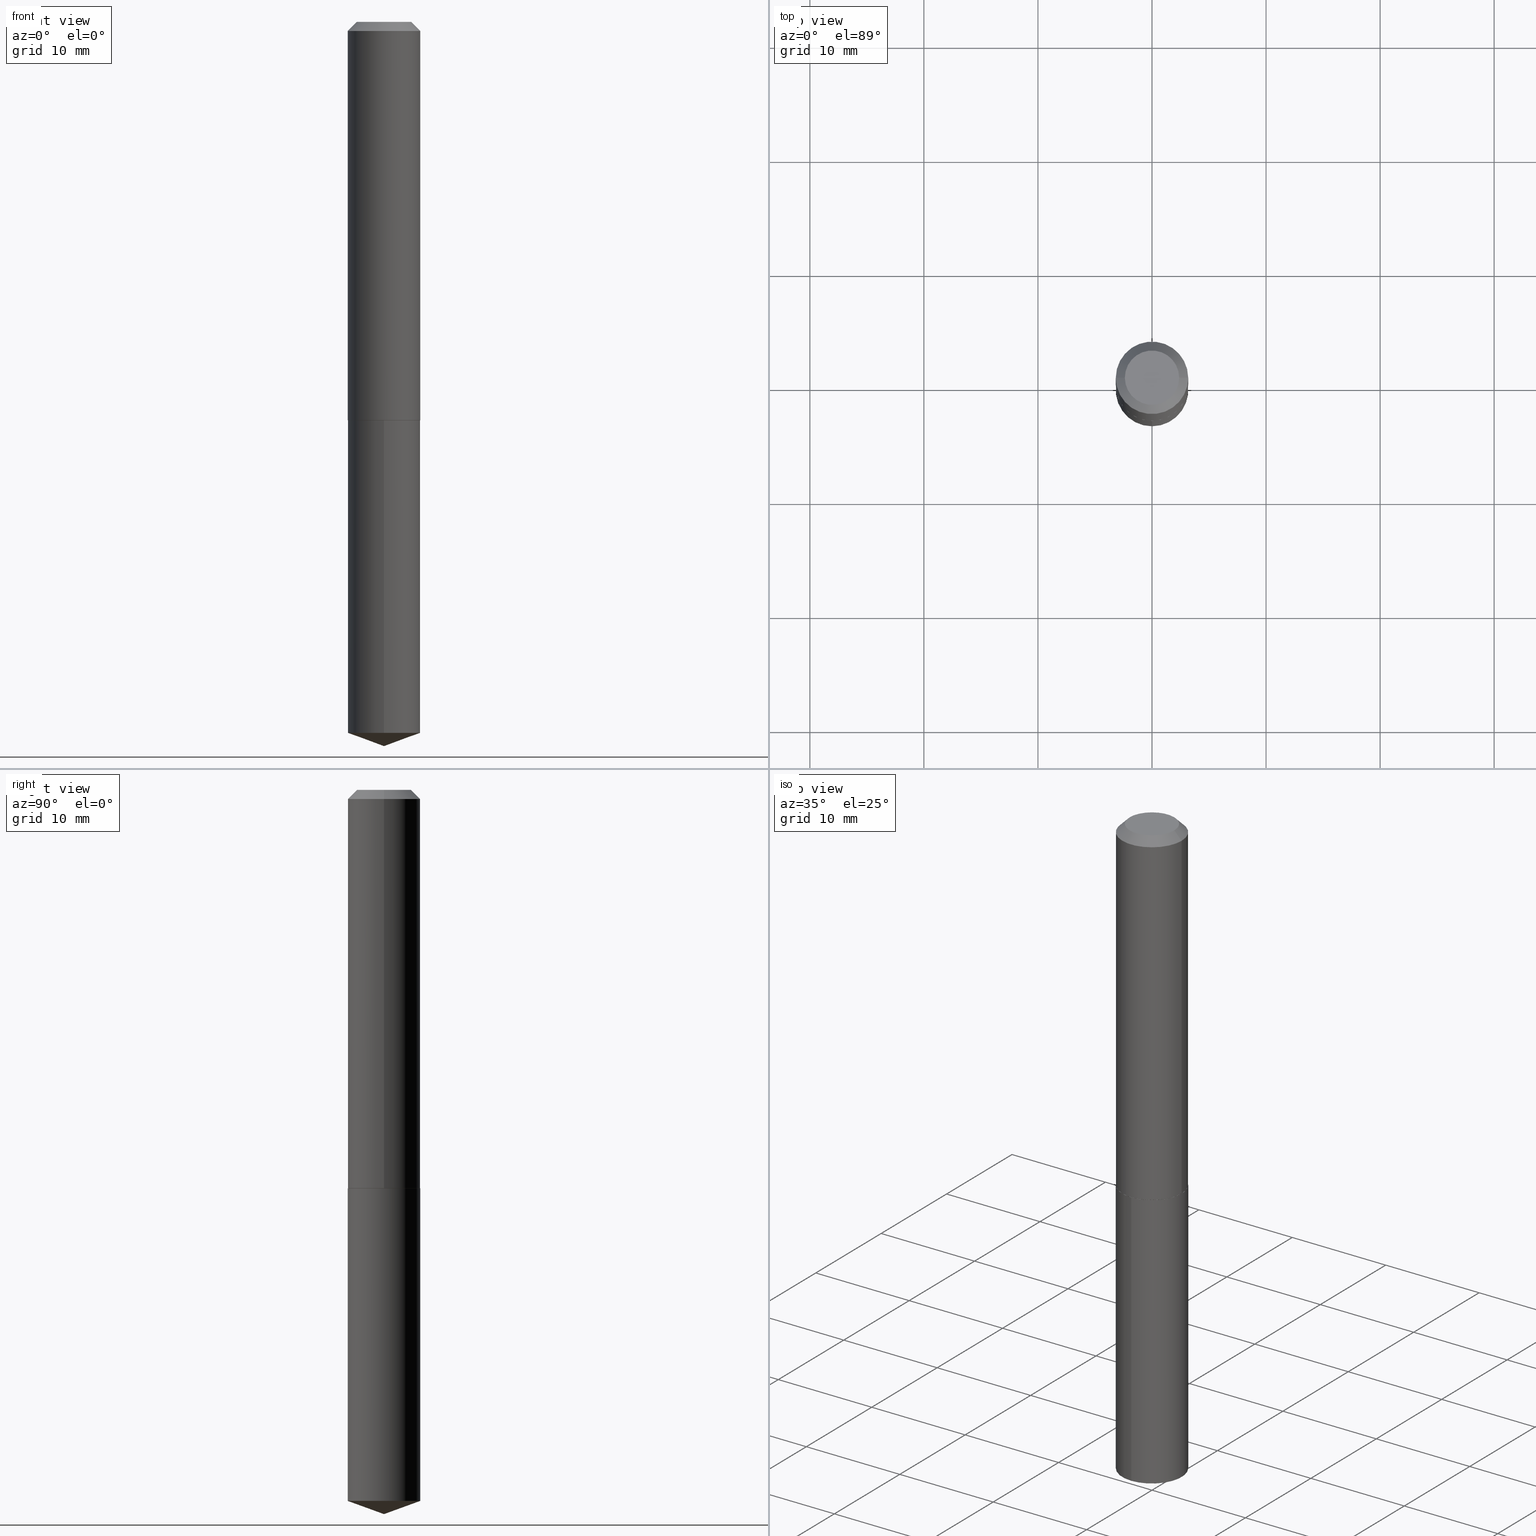
[diagram: canonical four-view strip — front | top / right | iso, engineering-drawing reading convention]
A machine part, canonical four-view strip (front | top / right | iso — engineering-drawing reading convention). The complete STEP part file that produces these views, byte-faithful:
ISO-10303-21;
HEADER;
FILE_DESCRIPTION (( 'STEP AP203' ),
    '1' );
FILE_NAME ('56116.STEP',
    '2024-04-22T20:20:31',
    ( '' ),
    ( '' ),
    'SwSTEP 2.0',
    'SolidWorks 2023',
    '' );
FILE_SCHEMA (( 'CONFIG_CONTROL_DESIGN' ));
ENDSEC;

DATA;
#1 = CARTESIAN_POINT ( 'NONE',  ( 8.881784197001853830E-16, 0.1249999999999951983, -1.375000000000000444 ) ) ;
#2 = CYLINDRICAL_SURFACE ( 'NONE', #51, 0.1250000000000000833 ) ;
#3 = EDGE_LOOP ( 'NONE', ( #100, #68 ) ) ;
#4 = CARTESIAN_POINT ( 'NONE',  ( 0.1250000000000000000, -9.666710415602905459E-16, -0.03125000000000021511 ) ) ;
#5 = EDGE_LOOP ( 'NONE', ( #7, #367, #153 ) ) ;
#6 = CARTESIAN_POINT ( 'NONE',  ( 7.642090019328604414E-31, -1.091087918388490513E-16, -0.03125000000000021511 ) ) ;
#7 = ORIENTED_EDGE ( 'NONE', *, *, #358, .F. ) ;
#8 = DIRECTION ( 'NONE',  ( -6.982962677686265922E-15, -1.000000000000000000, 4.370956789862821150E-15 ) ) ;
#9 = LOCAL_TIME ( 16, 20, 31.00000000000000000, #224 ) ;
#10 = CONICAL_SURFACE ( 'NONE', #119, 108.1684023407340760, 1.221730476396033493 ) ;
#11 = CARTESIAN_POINT ( 'NONE',  ( 0.1250000000000001665, -5.671911434950688343E-15, -1.374500000000000055 ) ) ;
#12 = DIRECTION ( 'NONE',  ( 1.000000000000000000, -6.982962677686267499E-15, 0.000000000000000000 ) ) ;
#13 = DIRECTION ( 'NONE',  ( -2.445639892400874138E-29, 3.491236333644586467E-15, 1.000000000000000000 ) ) ;
#14 = APPLICATION_PROTOCOL_DEFINITION ( 'international standard', 'config_control_design', 1994, #151 ) ;
#15 = DIRECTION ( 'NONE',  ( 2.445639892400874138E-29, -3.491236333644586467E-15, -1.000000000000000000 ) ) ;
#16 = CC_DESIGN_PERSON_AND_ORGANIZATION_ASSIGNMENT ( #110, #146, ( #351 ) ) ;
#17 = COORDINATED_UNIVERSAL_TIME_OFFSET ( 5, 0, .BEHIND. ) ;
#18 = CONICAL_SURFACE ( 'NONE', #188, 0.1250000000000000000, 0.7853981633974449483 ) ;
#19 = DIRECTION ( 'NONE',  ( -6.982962677686268288E-15, -1.000000000000000000, 3.475157955500700492E-15 ) ) ;
#20 = APPROVAL_STATUS ( 'not_yet_approved' ) ;
#21 = DIRECTION ( 'NONE',  ( 1.000000000000000000, -6.982962677686269077E-15, 0.000000000000000000 ) ) ;
#22 = CALENDAR_DATE ( 2024, 22, 4 ) ;
#23 = AXIS2_PLACEMENT_3D ( 'NONE', #109, #288, #225 ) ;
#24 = EDGE_CURVE ( 'NONE', #30, #268, #219, .T. ) ;
#25 = CIRCLE ( 'NONE', #323, 0.1250000000000000000 ) ;
#26 = ORIENTED_EDGE ( 'NONE', *, *, #228, .F. ) ;
#27 = AXIS2_PLACEMENT_3D ( 'NONE', #377, #15, #137 ) ;
#28 = ORIENTED_EDGE ( 'NONE', *, *, #78, .F. ) ;
#29 = PRODUCT_RELATED_PRODUCT_CATEGORY ( 'detail', '', ( #383 ) ) ;
#30 = VERTEX_POINT ( 'NONE', #43 ) ;
#31 = CC_DESIGN_APPROVAL ( #313, ( #152 ) ) ;
#32 = VECTOR ( 'NONE', #38, 39.37007874015748143 ) ;
#33 = ORIENTED_EDGE ( 'NONE', *, *, #271, .F. ) ;
#34 = DIRECTION ( 'NONE',  ( -6.561838499445207162E-15, -0.9396926207859082059, 0.3420201433256693790 ) ) ;
#35 = EDGE_LOOP ( 'NONE', ( #40, #357, #70, #217 ) ) ;
#36 = CC_DESIGN_PERSON_AND_ORGANIZATION_ASSIGNMENT ( #315, #49, ( #250 ) ) ;
#37 = DIRECTION ( 'NONE',  ( -2.445639892400874138E-29, 3.491236333644586467E-15, 1.000000000000000000 ) ) ;
#38 = DIRECTION ( 'NONE',  ( -0.7071067811865451302, 2.468850131082231817E-15, -0.7071067811865499042 ) ) ;
#39 = DIRECTION ( 'NONE',  ( -2.445639892400874138E-29, 3.491236333644586467E-15, 1.000000000000000000 ) ) ;
#40 = ORIENTED_EDGE ( 'NONE', *, *, #265, .F. ) ;
#41 = EDGE_CURVE ( 'NONE', #370, #86, #208, .T. ) ;
#42 = CARTESIAN_POINT ( 'NONE',  ( 3.361296874101470580E-29, -4.799041100239904215E-15, -1.374500000000000055 ) ) ;
#43 = CARTESIAN_POINT ( 'NONE',  ( -8.728703347107231882E-16, -0.1250000000000085487, -2.454503720716724846 ) ) ;
#44 = CARTESIAN_POINT ( 'NONE',  ( -8.728703347107496150E-16, -0.1250000000000048017, -1.374999999999999334 ) ) ;
#45 = AXIS2_PLACEMENT_3D ( 'NONE', #305, #166, #12 ) ;
#46 = DIRECTION ( 'NONE',  ( 1.000000000000000000, -6.982962677686266711E-15, 4.876115938594587387E-29 ) ) ;
#47 = CALENDAR_DATE ( 2024, 22, 4 ) ;
#48 = CARTESIAN_POINT ( 'NONE',  ( 3.362519608504562260E-29, -4.800786840909324930E-15, -1.375000000000000000 ) ) ;
#49 = PERSON_AND_ORGANIZATION_ROLE ( 'design_supplier' ) ;
#50 = CARTESIAN_POINT ( 'NONE',  ( 0.1250000000000000833, -8.728703347107839305E-16, 6.095220969744923945E-30 ) ) ;
#51 = AXIS2_PLACEMENT_3D ( 'NONE', #93, #245, #364 ) ;
#52 = CARTESIAN_POINT ( 'NONE',  ( -2.335971725809276970E-47, 3.335148527799642567E-33, 9.552245033349363524E-19 ) ) ;
#53 = DATE_AND_TIME ( #74, #9 ) ;
#54 = COORDINATED_UNIVERSAL_TIME_OFFSET ( 5, 0, .BEHIND. ) ;
#55 = EDGE_CURVE ( 'NONE', #161, #86, #302, .T. ) ;
#56 = ORIENTED_EDGE ( 'NONE', *, *, #135, .F. ) ;
#57 = APPROVAL_PERSON_ORGANIZATION ( #287, #313, #114 ) ;
#58 = EDGE_LOOP ( 'NONE', ( #63, #277, #148, #243 ) ) ;
#59 = EDGE_CURVE ( 'NONE', #240, #370, #90, .T. ) ;
#60 = VERTEX_POINT ( 'NONE', #1 ) ;
#61 = CARTESIAN_POINT ( 'NONE',  ( 3.362519608504562260E-29, -4.800786840909324930E-15, -1.375000000000000000 ) ) ;
#62 = ADVANCED_FACE ( 'NONE', ( #123 ), #389, .T. ) ;
#63 = ORIENTED_EDGE ( 'NONE', *, *, #59, .F. ) ;
#64 = DIRECTION ( 'NONE',  ( -1.000000000000000000, 6.982962677686266711E-15, 0.000000000000000000 ) ) ;
#65 = CARTESIAN_POINT ( 'NONE',  ( 3.361296874101470580E-29, -4.799041100239904215E-15, -1.374500000000000055 ) ) ;
#66 = AXIS2_PLACEMENT_3D ( 'NONE', #337, #99, #272 ) ;
#67 = DIRECTION ( 'NONE',  ( -6.982962677686265922E-15, -1.000000000000000000, 4.370956789862821150E-15 ) ) ;
#68 = ORIENTED_EDGE ( 'NONE', *, *, #106, .T. ) ;
#69 = CARTESIAN_POINT ( 'NONE',  ( 8.881784197001587589E-16, 0.1249999999999951983, -1.375000000000000444 ) ) ;
#70 = ORIENTED_EDGE ( 'NONE', *, *, #78, .T. ) ;
#71 = VECTOR ( 'NONE', #360, 39.37007874015748854 ) ;
#72 = DIRECTION ( 'NONE',  ( -2.445468806185136597E-29, 3.491481338843145583E-15, 1.000000000000000000 ) ) ;
#73 = DIRECTION ( 'NONE',  ( -2.445468806185136597E-29, 3.491481338843145583E-15, 1.000000000000000000 ) ) ;
#74 = CALENDAR_DATE ( 2024, 22, 4 ) ;
#75 = AXIS2_PLACEMENT_3D ( 'NONE', #111, #172, #257 ) ;
#76 = CARTESIAN_POINT ( 'NONE',  ( -2.335971725809276970E-47, 3.335148527799642567E-33, 9.552245033349363524E-19 ) ) ;
#77 = PRODUCT_DEFINITION_SHAPE ( 'NONE', 'NONE',  #152 ) ;
#78 = EDGE_CURVE ( 'NONE', #275, #333, #95, .T. ) ;
#79 = DIRECTION ( 'NONE',  ( -2.445468806185136597E-29, 3.491481338843145583E-15, 1.000000000000000000 ) ) ;
#80 = CYLINDRICAL_SURFACE ( 'NONE', #23, 0.1250000000000000833 ) ;
#81 = DATE_TIME_ROLE ( 'classification_date' ) ;
#82 = LOCAL_TIME ( 16, 20, 31.00000000000000000, #17 ) ;
#83 = EDGE_CURVE ( 'NONE', #274, #30, #330, .T. ) ;
#84 = COORDINATED_UNIVERSAL_TIME_OFFSET ( 5, 0, .BEHIND. ) ;
#85 = AXIS2_PLACEMENT_3D ( 'NONE', #216, #282, #281 ) ;
#86 = VERTEX_POINT ( 'NONE', #185 ) ;
#87 = EDGE_CURVE ( 'NONE', #30, #274, #256, .T. ) ;
#88 = CONICAL_SURFACE ( 'NONE', #115, 0.1250000000000000000, 0.7853981633974449483 ) ;
#89 = EDGE_LOOP ( 'NONE', ( #33, #150, #116, #127 ) ) ;
#90 = LINE ( 'NONE', #154, #290 ) ;
#91 = ADVANCED_FACE ( 'NONE', ( #229 ), #254, .F. ) ;
#92 = CARTESIAN_POINT ( 'NONE',  ( 6.002596971884558462E-29, -8.569589452980074895E-15, -2.454503720716725290 ) ) ;
#93 = CARTESIAN_POINT ( 'NONE',  ( 0.000000000000000000, 0.000000000000000000, 0.000000000000000000 ) ) ;
#94 = AXIS2_PLACEMENT_3D ( 'NONE', #92, #215, #329 ) ;
#95 = LINE ( 'NONE', #120, #32 ) ;
#96 = DIRECTION ( 'NONE',  ( -2.445639892400874138E-29, 3.491236333644586467E-15, 1.000000000000000000 ) ) ;
#97 = EDGE_CURVE ( 'NONE', #60, #268, #104, .T. ) ;
#98 = ORIENTED_EDGE ( 'NONE', *, *, #358, .T. ) ;
#99 = DIRECTION ( 'NONE',  ( -2.445468806185136597E-29, 3.491481338843145583E-15, 1.000000000000000000 ) ) ;
#100 = ORIENTED_EDGE ( 'NONE', *, *, #158, .T. ) ;
#101 = LINE ( 'NONE', #4, #361 ) ;
#102 = DIRECTION ( 'NONE',  ( -2.445468806185136877E-29, 3.491481338843145188E-15, 1.000000000000000000 ) ) ;
#103 = DATE_AND_TIME ( #22, #121 ) ;
#104 = CIRCLE ( 'NONE', #212, 0.1250000000000000000 ) ;
#105 = DIRECTION ( 'NONE',  ( -6.982962677686265922E-15, -1.000000000000000000, 4.370956789862821150E-15 ) ) ;
#106 = EDGE_CURVE ( 'NONE', #338, #275, #341, .T. ) ;
#107 = APPROVAL_ROLE ( '' ) ;
#108 = AXIS2_PLACEMENT_3D ( 'NONE', #52, #79, #46 ) ;
#109 = CARTESIAN_POINT ( 'NONE',  ( 0.000000000000000000, 0.000000000000000000, 0.000000000000000000 ) ) ;
#110 = PERSON_AND_ORGANIZATION ( #303, #343 ) ;
#111 = CARTESIAN_POINT ( 'NONE',  ( -1.167985862904638485E-47, 1.667574263899821283E-33, 4.776122516674681762E-19 ) ) ;
#112 = DATE_AND_TIME ( #258, #147 ) ;
#113 = EDGE_CURVE ( 'NONE', #86, #306, #372, .T. ) ;
#114 = APPROVAL_ROLE ( '' ) ;
#115 = AXIS2_PLACEMENT_3D ( 'NONE', #6, #128, #218 ) ;
#116 = ORIENTED_EDGE ( 'NONE', *, *, #24, .T. ) ;
#117 = ORIENTED_EDGE ( 'NONE', *, *, #180, .T. ) ;
#118 = VECTOR ( 'NONE', #96, 39.37007874015748143 ) ;
#119 = AXIS2_PLACEMENT_3D ( 'NONE', #285, #13, #19 ) ;
#120 = CARTESIAN_POINT ( 'NONE',  ( -0.1250000000000000000, 7.637615428719342382E-16, -0.03125000000000021511 ) ) ;
#121 = LOCAL_TIME ( 16, 20, 31.00000000000000000, #263 ) ;
#122 = FACE_OUTER_BOUND ( 'NONE', #390, .T. ) ;
#123 = FACE_OUTER_BOUND ( 'NONE', #5, .T. ) ;
#124 = ADVANCED_FACE ( 'NONE', ( #314 ), #10, .T. ) ;
#125 = DIRECTION ( 'NONE',  ( 0.7071067811865451302, -7.319954787623248157E-15, -0.7071067811865499042 ) ) ;
#126 = APPLICATION_CONTEXT ( 'configuration controlled 3d designs of mechanical parts and assemblies' ) ;
#127 = ORIENTED_EDGE ( 'NONE', *, *, #97, .F. ) ;
#128 = DIRECTION ( 'NONE',  ( 2.445468806185136597E-29, -3.491481338843145583E-15, -1.000000000000000000 ) ) ;
#129 = ORIENTED_EDGE ( 'NONE', *, *, #83, .F. ) ;
#130 = CIRCLE ( 'NONE', #238, 0.1245000000000002632 ) ;
#131 = LINE ( 'NONE', #160, #386 ) ;
#132 = DIRECTION ( 'NONE',  ( -2.445639892400874138E-29, 3.491236333644586467E-15, 1.000000000000000000 ) ) ;
#133 = LINE ( 'NONE', #184, #260 ) ;
#134 = CARTESIAN_POINT ( 'NONE',  ( 3.361296874101470580E-29, -4.799041100239904215E-15, -1.374500000000000055 ) ) ;
#135 = EDGE_CURVE ( 'NONE', #370, #333, #231, .T. ) ;
#136 = PERSON_AND_ORGANIZATION ( #303, #343 ) ;
#137 = DIRECTION ( 'NONE',  ( 6.982962677686265922E-15, 1.000000000000000000, -3.491236333644586467E-15 ) ) ;
#138 =( CONVERSION_BASED_UNIT ( 'INCH', #334 ) LENGTH_UNIT ( ) NAMED_UNIT ( #368 ) );
#139 = AXIS2_PLACEMENT_3D ( 'NONE', #214, #39, #67 ) ;
#140 = FACE_OUTER_BOUND ( 'NONE', #388, .T. ) ;
#141 = DIRECTION ( 'NONE',  ( 0.000000000000000000, 0.000000000000000000, 1.000000000000000000 ) ) ;
#142 = ADVANCED_FACE ( 'NONE', ( #223 ), #80, .T. ) ;
#143 = DIRECTION ( 'NONE',  ( 1.000000000000000000, -6.982962677686267499E-15, 0.000000000000000000 ) ) ;
#144 = CLOSED_SHELL ( 'NONE', ( #249, #379, #167, #181, #220, #142, #235, #173 ) ) ;
#145 = SHAPE_DEFINITION_REPRESENTATION ( #77, #384 ) ;
#146 = PERSON_AND_ORGANIZATION_ROLE ( 'classification_officer' ) ;
#147 = LOCAL_TIME ( 16, 20, 31.00000000000000000, #84 ) ;
#148 = ORIENTED_EDGE ( 'NONE', *, *, #55, .T. ) ;
#149 = ORIENTED_EDGE ( 'NONE', *, *, #55, .F. ) ;
#150 = ORIENTED_EDGE ( 'NONE', *, *, #83, .T. ) ;
#151 = APPLICATION_CONTEXT ( 'configuration controlled 3d designs of mechanical parts and assemblies' ) ;
#152 = PRODUCT_DEFINITION ( 'UNKNOWN', '', #250, #345 ) ;
#153 = ORIENTED_EDGE ( 'NONE', *, *, #87, .F. ) ;
#154 = CARTESIAN_POINT ( 'NONE',  ( -0.1250000000000001665, -3.910862680539777405E-15, -1.374500000000000055 ) ) ;
#155 = FACE_OUTER_BOUND ( 'NONE', #322, .T. ) ;
#156 = DIRECTION ( 'NONE',  ( 1.000000000000000000, -6.982962677686269077E-15, 0.000000000000000000 ) ) ;
#157 =( GEOMETRIC_REPRESENTATION_CONTEXT ( 3 ) GLOBAL_UNCERTAINTY_ASSIGNED_CONTEXT ( ( #252 ) ) GLOBAL_UNIT_ASSIGNED_CONTEXT ( ( #138, #234, #352 ) ) REPRESENTATION_CONTEXT ( 'NONE', 'WORKASPACE' ) );
#158 = EDGE_CURVE ( 'NONE', #275, #338, #325, .T. ) ;
#159 = VECTOR ( 'NONE', #102, 39.37007874015748143 ) ;
#160 = CARTESIAN_POINT ( 'NONE',  ( 6.114103856618628723E-29, -8.728090834111466561E-15, -2.500000000000000000 ) ) ;
#161 = VERTEX_POINT ( 'NONE', #316 ) ;
#162 = FACE_OUTER_BOUND ( 'NONE', #35, .T. ) ;
#163 = ORIENTED_EDGE ( 'NONE', *, *, #350, .F. ) ;
#164 = CARTESIAN_POINT ( 'NONE',  ( 0.09374999999999998612, -8.049213644256857164E-16, 9.552245033400394890E-19 ) ) ;
#165 = DIRECTION ( 'NONE',  ( -0.7071067811865474617, 7.493145998870352582E-15, 0.7071067811865474617 ) ) ;
#166 = DIRECTION ( 'NONE',  ( -2.445468806185136597E-29, 3.491481338843145583E-15, 1.000000000000000000 ) ) ;
#167 = ADVANCED_FACE ( 'NONE', ( #140 ), #286, .T. ) ;
#168 = DIRECTION ( 'NONE',  ( -2.445468806185136877E-29, 3.491481338843145188E-15, 1.000000000000000000 ) ) ;
#169 = APPROVAL_DATE_TIME ( #342, #313 ) ;
#170 = DIRECTION ( 'NONE',  ( -2.445639892400874138E-29, 3.491236333644586467E-15, 1.000000000000000000 ) ) ;
#171 = PERSON_AND_ORGANIZATION ( #303, #343 ) ;
#172 = DIRECTION ( 'NONE',  ( 2.438088387897960049E-29, -3.491481338843145188E-15, -1.000000000000000000 ) ) ;
#173 = ADVANCED_FACE ( 'NONE', ( #340 ), #380, .F. ) ;
#174 = AXIS2_PLACEMENT_3D ( 'NONE', #134, #262, #21 ) ;
#175 = APPROVAL_STATUS ( 'not_yet_approved' ) ;
#176 = DIRECTION ( 'NONE',  ( -2.445468806185136597E-29, 3.491481338843145583E-15, 1.000000000000000000 ) ) ;
#177 = APPROVAL_DATE_TIME ( #53, #363 ) ;
#178 = PERSON_AND_ORGANIZATION ( #303, #343 ) ;
#179 = AXIS2_PLACEMENT_3D ( 'NONE', #276, #186, #8 ) ;
#180 = EDGE_CURVE ( 'NONE', #306, #333, #25, .T. ) ;
#181 = ADVANCED_FACE ( 'NONE', ( #344 ), #349, .F. ) ;
#182 = APPROVAL_PERSON_ORGANIZATION ( #171, #363, #319 ) ;
#183 = DIRECTION ( 'NONE',  ( -2.445639892400874138E-29, 3.491236333644586467E-15, 1.000000000000000000 ) ) ;
#184 = CARTESIAN_POINT ( 'NONE',  ( 6.113629243908907597E-29, -8.728764598407503834E-15, -2.500000000000000000 ) ) ;
#185 = CARTESIAN_POINT ( 'NONE',  ( 0.1250000000000001665, -5.671911434950688343E-15, -1.374500000000000055 ) ) ;
#186 = DIRECTION ( 'NONE',  ( -2.445639892400874138E-29, 3.491236333644586467E-15, 1.000000000000000000 ) ) ;
#187 = ORIENTED_EDGE ( 'NONE', *, *, #324, .F. ) ;
#188 = AXIS2_PLACEMENT_3D ( 'NONE', #309, #300, #64 ) ;
#189 = CARTESIAN_POINT ( 'NONE',  ( -0.1250000000000000000, -1.565896526339250439E-15, -0.03125000000000021511 ) ) ;
#190 = ORIENTED_EDGE ( 'NONE', *, *, #296, .F. ) ;
#191 = CARTESIAN_POINT ( 'NONE',  ( 3.361296874101470580E-29, -4.799041100239904215E-15, -1.374500000000000055 ) ) ;
#192 = CARTESIAN_POINT ( 'NONE',  ( -8.728703347107496150E-16, -0.1250000000000048017, -1.374999999999999334 ) ) ;
#193 = FACE_OUTER_BOUND ( 'NONE', #236, .T. ) ;
#194 = MANIFOLD_SOLID_BREP ( 'Body-Move/Copy2[2]', #144 ) ;
#195 = CARTESIAN_POINT ( 'NONE',  ( 3.362519608504562260E-29, -4.800786840909324930E-15, -1.375000000000000000 ) ) ;
#196 = CIRCLE ( 'NONE', #45, 0.1245000000000002632 ) ;
#197 = VECTOR ( 'NONE', #168, 39.37007874015748143 ) ;
#198 = DIRECTION ( 'NONE',  ( 1.000000000000000000, -6.982962677686265922E-15, 4.876176775795935793E-29 ) ) ;
#199 = MANIFOLD_SOLID_BREP ( 'Body-Move/Copy2[1]', #203 ) ;
#200 = DATE_AND_TIME ( #346, #82 ) ;
#201 = CARTESIAN_POINT ( 'NONE',  ( 3.362519608504562260E-29, -4.800786840909324930E-15, -1.375000000000000000 ) ) ;
#202 = EDGE_CURVE ( 'NONE', #240, #161, #130, .T. ) ;
#203 = CLOSED_SHELL ( 'NONE', ( #239, #62, #124, #209, #91 ) ) ;
#204 = DIRECTION ( 'NONE',  ( 1.000000000000000000, -6.982962677686266711E-15, 0.000000000000000000 ) ) ;
#205 = LOCAL_TIME ( 16, 20, 31.00000000000000000, #54 ) ;
#206 = APPROVAL_STATUS ( 'not_yet_approved' ) ;
#207 = ORIENTED_EDGE ( 'NONE', *, *, #97, .T. ) ;
#208 = CIRCLE ( 'NONE', #242, 0.1250000000000001665 ) ;
#209 = ADVANCED_FACE ( 'NONE', ( #264 ), #382, .T. ) ;
#210 = AXIS2_PLACEMENT_3D ( 'NONE', #201, #317, #198 ) ;
#211 = EDGE_LOOP ( 'NONE', ( #187, #251 ) ) ;
#212 = AXIS2_PLACEMENT_3D ( 'NONE', #195, #170, #105 ) ;
#213 = DIRECTION ( 'NONE',  ( -6.982962677686268288E-15, -1.000000000000000000, 3.475157955500700492E-15 ) ) ;
#214 = CARTESIAN_POINT ( 'NONE',  ( 3.362519608504562260E-29, -4.800786840909324930E-15, -1.375000000000000000 ) ) ;
#215 = DIRECTION ( 'NONE',  ( -2.445639892400874138E-29, 3.491236333644586467E-15, 1.000000000000000000 ) ) ;
#216 = CARTESIAN_POINT ( 'NONE',  ( 6.002596971884558462E-29, -8.569589452980074895E-15, -2.454503720716725290 ) ) ;
#217 = ORIENTED_EDGE ( 'NONE', *, *, #228, .T. ) ;
#218 = DIRECTION ( 'NONE',  ( -1.000000000000000000, 6.982962677686266711E-15, 0.000000000000000000 ) ) ;
#219 = LINE ( 'NONE', #192, #359 ) ;
#220 = ADVANCED_FACE ( 'NONE', ( #366 ), #387, .T. ) ;
#221 = CARTESIAN_POINT ( 'NONE',  ( 8.881784197001849886E-16, 0.1249999999999914235, -2.454503720716725734 ) ) ;
#222 = AXIS2_PLACEMENT_3D ( 'NONE', #279, #132, #213 ) ;
#223 = FACE_OUTER_BOUND ( 'NONE', #247, .T. ) ;
#224 = COORDINATED_UNIVERSAL_TIME_OFFSET ( 5, 0, .BEHIND. ) ;
#225 = DIRECTION ( 'NONE',  ( 1.000000000000000000, -6.982962677686266711E-15, 4.876176775795935793E-29 ) ) ;
#226 = CC_DESIGN_APPROVAL ( #363, ( #351 ) ) ;
#227 = PERSON_AND_ORGANIZATION ( #303, #343 ) ;
#228 = EDGE_CURVE ( 'NONE', #333, #306, #356, .T. ) ;
#229 = FACE_OUTER_BOUND ( 'NONE', #327, .T. ) ;
#230 = APPROVAL_DATE_TIME ( #200, #304 ) ;
#231 = LINE ( 'NONE', #311, #159 ) ;
#232 = PERSON_AND_ORGANIZATION ( #303, #343 ) ;
#233 = CC_DESIGN_SECURITY_CLASSIFICATION ( #351, ( #250 ) ) ;
#234 =( NAMED_UNIT ( * ) PLANE_ANGLE_UNIT ( ) SI_UNIT ( $, .RADIAN. ) );
#235 = ADVANCED_FACE ( 'NONE', ( #162 ), #88, .T. ) ;
#236 = EDGE_LOOP ( 'NONE', ( #321, #365, #117, #28 ) ) ;
#237 = ORIENTED_EDGE ( 'NONE', *, *, #180, .F. ) ;
#238 = AXIS2_PLACEMENT_3D ( 'NONE', #48, #176, #143 ) ;
#239 = ADVANCED_FACE ( 'NONE', ( #122 ), #248, .T. ) ;
#240 = VERTEX_POINT ( 'NONE', #369 ) ;
#241 = ORIENTED_EDGE ( 'NONE', *, *, #24, .F. ) ;
#242 = AXIS2_PLACEMENT_3D ( 'NONE', #65, #308, #156 ) ;
#243 = ORIENTED_EDGE ( 'NONE', *, *, #41, .F. ) ;
#244 = CC_DESIGN_PERSON_AND_ORGANIZATION_ASSIGNMENT ( #227, #320, ( #152 ) ) ;
#245 = DIRECTION ( 'NONE',  ( -2.445468806185136597E-29, 3.491481338843145583E-15, 1.000000000000000000 ) ) ;
#246 = ORIENTED_EDGE ( 'NONE', *, *, #59, .T. ) ;
#247 = EDGE_LOOP ( 'NONE', ( #56, #353, #355, #26 ) ) ;
#248 = CYLINDRICAL_SURFACE ( 'NONE', #179, 0.1250000000000000000 ) ;
#249 = ADVANCED_FACE ( 'NONE', ( #193 ), #18, .T. ) ;
#250 = PRODUCT_DEFINITION_FORMATION_WITH_SPECIFIED_SOURCE ( 'ANY', '', #383, .NOT_KNOWN. ) ;
#251 = ORIENTED_EDGE ( 'NONE', *, *, #202, .F. ) ;
#252 = UNCERTAINTY_MEASURE_WITH_UNIT (LENGTH_MEASURE( 1.000000000000000082E-05 ), #138, 'distance_accuracy_value', 'NONE');
#253 = DIRECTION ( 'NONE',  ( 6.676917655467974440E-15, 0.9396926207859105373, 0.3420201433256628287 ) ) ;
#254 = PLANE ( 'NONE',  #27 ) ;
#255 = DIRECTION ( 'NONE',  ( -2.445468806185136597E-29, 3.491481338843145583E-15, 1.000000000000000000 ) ) ;
#256 = CIRCLE ( 'NONE', #85, 0.1250000000000000000 ) ;
#257 = DIRECTION ( 'NONE',  ( -1.000000000000000000, 6.982962677686265922E-15, -4.876176775795935793E-29 ) ) ;
#258 = CALENDAR_DATE ( 2024, 22, 4 ) ;
#259 = DIRECTION ( 'NONE',  ( 1.000000000000000000, -6.982962677686266711E-15, 4.876115938594587387E-29 ) ) ;
#260 = VECTOR ( 'NONE', #34, 39.37007874015748854 ) ;
#261 = CC_DESIGN_DATE_AND_TIME_ASSIGNMENT ( #112, #376, ( #152 ) ) ;
#262 = DIRECTION ( 'NONE',  ( -2.445468806185136597E-29, 3.491481338843145583E-15, 1.000000000000000000 ) ) ;
#263 = COORDINATED_UNIVERSAL_TIME_OFFSET ( 5, 0, .BEHIND. ) ;
#264 = FACE_OUTER_BOUND ( 'NONE', #89, .T. ) ;
#265 = EDGE_CURVE ( 'NONE', #338, #306, #101, .T. ) ;
#266 = CIRCLE ( 'NONE', #310, 0.1250000000000000000 ) ;
#267 = ORIENTED_EDGE ( 'NONE', *, *, #350, .T. ) ;
#268 = VERTEX_POINT ( 'NONE', #44 ) ;
#269 = ORIENTED_EDGE ( 'NONE', *, *, #113, .F. ) ;
#270 = ORIENTED_EDGE ( 'NONE', *, *, #87, .T. ) ;
#271 = EDGE_CURVE ( 'NONE', #274, #60, #298, .T. ) ;
#272 = DIRECTION ( 'NONE',  ( 1.000000000000000000, -6.982962677686266711E-15, 0.000000000000000000 ) ) ;
#273 = AXIS2_PLACEMENT_3D ( 'NONE', #191, #255, #339 ) ;
#274 = VERTEX_POINT ( 'NONE', #221 ) ;
#275 = VERTEX_POINT ( 'NONE', #280 ) ;
#276 = CARTESIAN_POINT ( 'NONE',  ( 3.362519608504562260E-29, -4.800786840909324930E-15, -1.375000000000000000 ) ) ;
#277 = ORIENTED_EDGE ( 'NONE', *, *, #202, .T. ) ;
#278 = CARTESIAN_POINT ( 'NONE',  ( -0.1250000000000001665, -3.910862680539777405E-15, -1.374500000000000055 ) ) ;
#279 = CARTESIAN_POINT ( 'NONE',  ( -9.017117064643713482E-28, 1.287218216398266018E-13, 36.87007874015748143 ) ) ;
#280 = CARTESIAN_POINT ( 'NONE',  ( -0.09374999999999998612, 7.092071469525108711E-16, 9.552245033301675573E-19 ) ) ;
#281 = DIRECTION ( 'NONE',  ( -6.982962677686265922E-15, -1.000000000000000000, 4.370956789862821150E-15 ) ) ;
#282 = DIRECTION ( 'NONE',  ( -2.445639892400874138E-29, 3.491236333644586467E-15, 1.000000000000000000 ) ) ;
#283 = CC_DESIGN_DATE_AND_TIME_ASSIGNMENT ( #103, #81, ( #351 ) ) ;
#284 = APPLICATION_PROTOCOL_DEFINITION ( 'international standard', 'config_control_design', 1994, #126 ) ;
#285 = CARTESIAN_POINT ( 'NONE',  ( -9.017117064643713482E-28, 1.287218216398266018E-13, 36.87007874015748143 ) ) ;
#286 = CONICAL_SURFACE ( 'NONE', #174, 0.1250000000000001665, 0.7853981633974482790 ) ;
#287 = PERSON_AND_ORGANIZATION ( #303, #343 ) ;
#288 = DIRECTION ( 'NONE',  ( -2.445468806185136597E-29, 3.491481338843145583E-15, 1.000000000000000000 ) ) ;
#289 = CARTESIAN_POINT ( 'NONE',  ( 0.000000000000000000, 0.000000000000000000, 0.000000000000000000 ) ) ;
#290 = VECTOR ( 'NONE', #165, 39.37007874015748854 ) ;
#291 = PERSON_AND_ORGANIZATION_ROLE ( 'creator' ) ;
#292 = APPROVAL_PERSON_ORGANIZATION ( #232, #304, #107 ) ;
#293 = ORIENTED_EDGE ( 'NONE', *, *, #373, .F. ) ;
#294 = CC_DESIGN_APPROVAL ( #304, ( #250 ) ) ;
#295 = VERTEX_POINT ( 'NONE', #328 ) ;
#296 = EDGE_CURVE ( 'NONE', #86, #370, #335, .T. ) ;
#297 = ORIENTED_EDGE ( 'NONE', *, *, #324, .T. ) ;
#298 = LINE ( 'NONE', #69, #118 ) ;
#299 = ORIENTED_EDGE ( 'NONE', *, *, #296, .T. ) ;
#300 = DIRECTION ( 'NONE',  ( 2.445468806185136597E-29, -3.491481338843145583E-15, -1.000000000000000000 ) ) ;
#301 = AXIS2_PLACEMENT_3D ( 'NONE', #42, #72, #371 ) ;
#302 = LINE ( 'NONE', #11, #71 ) ;
#303 = PERSON ( 'UNSPECIFIED', 'UNSPECIFIED', 'UNSPECIFIED', ('UNSPECIFIED'), ('UNSPECIFIED'), ('UNSPECIFIED') ) ;
#304 = APPROVAL ( #175, 'UNSPECIFIED' ) ;
#305 = CARTESIAN_POINT ( 'NONE',  ( 3.362519608504562260E-29, -4.800786840909324930E-15, -1.375000000000000000 ) ) ;
#306 = VERTEX_POINT ( 'NONE', #307 ) ;
#307 = CARTESIAN_POINT ( 'NONE',  ( 0.1250000000000000000, -9.819791265496324395E-16, -0.03125000000000021511 ) ) ;
#308 = DIRECTION ( 'NONE',  ( -2.445468806185136597E-29, 3.491481338843145583E-15, 1.000000000000000000 ) ) ;
#309 = CARTESIAN_POINT ( 'NONE',  ( 7.642090019328604414E-31, -1.091087918388490513E-16, -0.03125000000000021511 ) ) ;
#310 = AXIS2_PLACEMENT_3D ( 'NONE', #61, #37, #374 ) ;
#311 = CARTESIAN_POINT ( 'NONE',  ( -0.1250000000000000833, 8.881784197001258240E-16, -6.148668862818636431E-30 ) ) ;
#312 = MECHANICAL_CONTEXT ( 'NONE', #151, 'mechanical' ) ;
#313 = APPROVAL ( #20, 'UNSPECIFIED' ) ;
#314 = FACE_OUTER_BOUND ( 'NONE', #336, .T. ) ;
#315 = PERSON_AND_ORGANIZATION ( #303, #343 ) ;
#316 = CARTESIAN_POINT ( 'NONE',  ( 0.1245000000000002632, -5.670165694281267628E-15, -1.375000000000000000 ) ) ;
#317 = DIRECTION ( 'NONE',  ( -2.438088387897960049E-29, 3.491481338843145188E-15, 1.000000000000000000 ) ) ;
#318 = AXIS2_PLACEMENT_3D ( 'NONE', #289, #141, #348 ) ;
#319 = APPROVAL_ROLE ( '' ) ;
#320 = PERSON_AND_ORGANIZATION_ROLE ( 'creator' ) ;
#321 = ORIENTED_EDGE ( 'NONE', *, *, #106, .F. ) ;
#322 = EDGE_LOOP ( 'NONE', ( #299, #326, #237, #269 ) ) ;
#323 = AXIS2_PLACEMENT_3D ( 'NONE', #347, #375, #204 ) ;
#324 = EDGE_CURVE ( 'NONE', #161, #240, #196, .T. ) ;
#325 = CIRCLE ( 'NONE', #108, 0.09374999999999998612 ) ;
#326 = ORIENTED_EDGE ( 'NONE', *, *, #135, .T. ) ;
#327 = EDGE_LOOP ( 'NONE', ( #267, #207 ) ) ;
#328 = CARTESIAN_POINT ( 'NONE',  ( 6.114099731002186046E-29, -8.728090834111466561E-15, -2.500000000000000000 ) ) ;
#329 = DIRECTION ( 'NONE',  ( -6.982962677686265922E-15, -1.000000000000000000, 4.370956789862821150E-15 ) ) ;
#330 = CIRCLE ( 'NONE', #94, 0.1250000000000000000 ) ;
#331 =( LENGTH_UNIT ( ) NAMED_UNIT ( * ) SI_UNIT ( $, .METRE. ) );
#332 = CC_DESIGN_PERSON_AND_ORGANIZATION_ASSIGNMENT ( #136, #381, ( #383 ) ) ;
#333 = VERTEX_POINT ( 'NONE', #189 ) ;
#334 = LENGTH_MEASURE_WITH_UNIT ( LENGTH_MEASURE( 0.02539999999999999897 ), #331 );
#335 = CIRCLE ( 'NONE', #273, 0.1250000000000001665 ) ;
#336 = EDGE_LOOP ( 'NONE', ( #293, #98, #129 ) ) ;
#337 = CARTESIAN_POINT ( 'NONE',  ( 7.642090019328604414E-31, -1.091087918388490513E-16, -0.03125000000000021511 ) ) ;
#338 = VERTEX_POINT ( 'NONE', #164 ) ;
#339 = DIRECTION ( 'NONE',  ( 1.000000000000000000, -6.982962677686269077E-15, 0.000000000000000000 ) ) ;
#340 = FACE_OUTER_BOUND ( 'NONE', #3, .T. ) ;
#341 = CIRCLE ( 'NONE', #385, 0.09374999999999998612 ) ;
#342 = DATE_AND_TIME ( #47, #205 ) ;
#343 = ORGANIZATION ( 'UNSPECIFIED', 'UNSPECIFIED', '' ) ;
#344 = FACE_OUTER_BOUND ( 'NONE', #211, .T. ) ;
#345 = DESIGN_CONTEXT ( 'detailed design', #126, 'design' ) ;
#346 = CALENDAR_DATE ( 2024, 22, 4 ) ;
#347 = CARTESIAN_POINT ( 'NONE',  ( 7.642090019328604414E-31, -1.091087918388490513E-16, -0.03125000000000021511 ) ) ;
#348 = DIRECTION ( 'NONE',  ( 1.000000000000000000, 0.000000000000000000, 0.000000000000000000 ) ) ;
#349 = PLANE ( 'NONE',  #210 ) ;
#350 = EDGE_CURVE ( 'NONE', #268, #60, #266, .T. ) ;
#351 = SECURITY_CLASSIFICATION ( '', '', #378 ) ;
#352 =( NAMED_UNIT ( * ) SI_UNIT ( $, .STERADIAN. ) SOLID_ANGLE_UNIT ( ) );
#353 = ORIENTED_EDGE ( 'NONE', *, *, #41, .T. ) ;
#354 = CC_DESIGN_PERSON_AND_ORGANIZATION_ASSIGNMENT ( #178, #291, ( #250 ) ) ;
#355 = ORIENTED_EDGE ( 'NONE', *, *, #113, .T. ) ;
#356 = CIRCLE ( 'NONE', #66, 0.1250000000000000000 ) ;
#357 = ORIENTED_EDGE ( 'NONE', *, *, #158, .F. ) ;
#358 = EDGE_CURVE ( 'NONE', #295, #30, #133, .T. ) ;
#359 = VECTOR ( 'NONE', #183, 39.37007874015748143 ) ;
#360 = DIRECTION ( 'NONE',  ( 0.7071067811865474617, -2.468850131082256666E-15, 0.7071067811865474617 ) ) ;
#361 = VECTOR ( 'NONE', #125, 39.37007874015748143 ) ;
#362 = ORIENTED_EDGE ( 'NONE', *, *, #271, .T. ) ;
#363 = APPROVAL ( #206, 'UNSPECIFIED' ) ;
#364 = DIRECTION ( 'NONE',  ( 1.000000000000000000, -6.982962677686266711E-15, 4.876176775795935793E-29 ) ) ;
#365 = ORIENTED_EDGE ( 'NONE', *, *, #265, .T. ) ;
#366 = FACE_OUTER_BOUND ( 'NONE', #58, .T. ) ;
#367 = ORIENTED_EDGE ( 'NONE', *, *, #373, .T. ) ;
#368 = DIMENSIONAL_EXPONENTS ( 1.000000000000000000, 0.000000000000000000, 0.000000000000000000, 0.000000000000000000, 0.000000000000000000, 0.000000000000000000, 0.000000000000000000 ) ;
#369 = CARTESIAN_POINT ( 'NONE',  ( -0.1245000000000002632, -3.913511907713887817E-15, -1.375000000000000000 ) ) ;
#370 = VERTEX_POINT ( 'NONE', #278 ) ;
#371 = DIRECTION ( 'NONE',  ( 1.000000000000000000, -6.982962677686269077E-15, 0.000000000000000000 ) ) ;
#372 = LINE ( 'NONE', #50, #197 ) ;
#373 = EDGE_CURVE ( 'NONE', #295, #274, #131, .T. ) ;
#374 = DIRECTION ( 'NONE',  ( -6.982962677686265922E-15, -1.000000000000000000, 4.370956789862821150E-15 ) ) ;
#375 = DIRECTION ( 'NONE',  ( -2.445468806185136597E-29, 3.491481338843145583E-15, 1.000000000000000000 ) ) ;
#376 = DATE_TIME_ROLE ( 'creation_date' ) ;
#377 = CARTESIAN_POINT ( 'NONE',  ( 3.362519608504562260E-29, -4.800786840909324930E-15, -1.375000000000000000 ) ) ;
#378 = SECURITY_CLASSIFICATION_LEVEL ( 'unclassified' ) ;
#379 = ADVANCED_FACE ( 'NONE', ( #155 ), #2, .T. ) ;
#380 = PLANE ( 'NONE',  #75 ) ;
#381 = PERSON_AND_ORGANIZATION_ROLE ( 'design_owner' ) ;
#382 = CYLINDRICAL_SURFACE ( 'NONE', #139, 0.1250000000000000000 ) ;
#383 = PRODUCT ( '56116', '56116', '', ( #312 ) ) ;
#384 = ADVANCED_BREP_SHAPE_REPRESENTATION ( '56116', ( #199, #194, #318 ), #157 ) ;
#385 = AXIS2_PLACEMENT_3D ( 'NONE', #76, #73, #259 ) ;
#386 = VECTOR ( 'NONE', #253, 39.37007874015748143 ) ;
#387 = CONICAL_SURFACE ( 'NONE', #301, 0.1250000000000001665, 0.7853981633974482790 ) ;
#388 = EDGE_LOOP ( 'NONE', ( #297, #246, #190, #149 ) ) ;
#389 = CONICAL_SURFACE ( 'NONE', #222, 108.1684023407340760, 1.221730476396033493 ) ;
#390 = EDGE_LOOP ( 'NONE', ( #270, #362, #163, #241 ) ) ;
ENDSEC;
END-ISO-10303-21;
